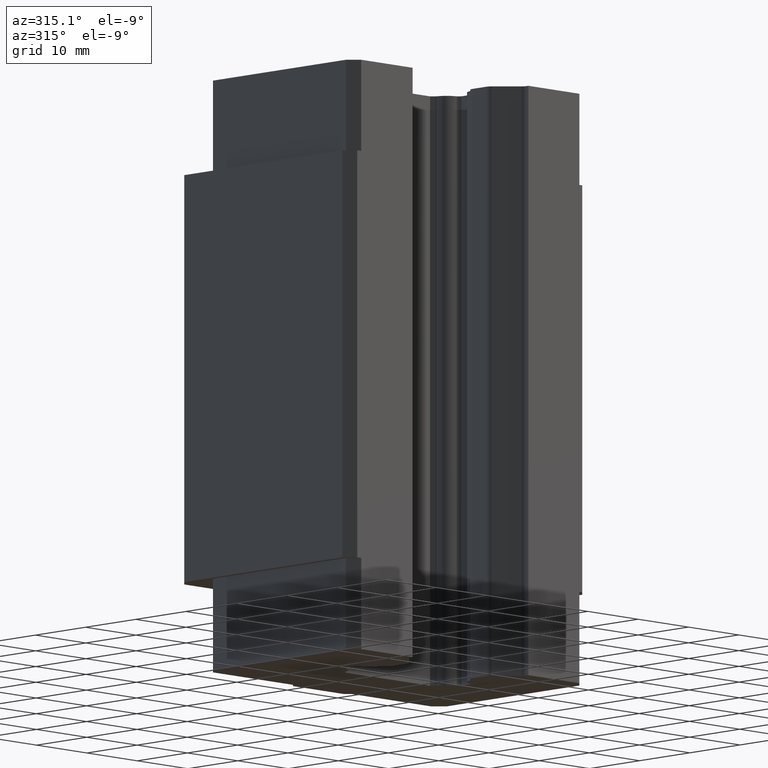
[diagram: clean part render]
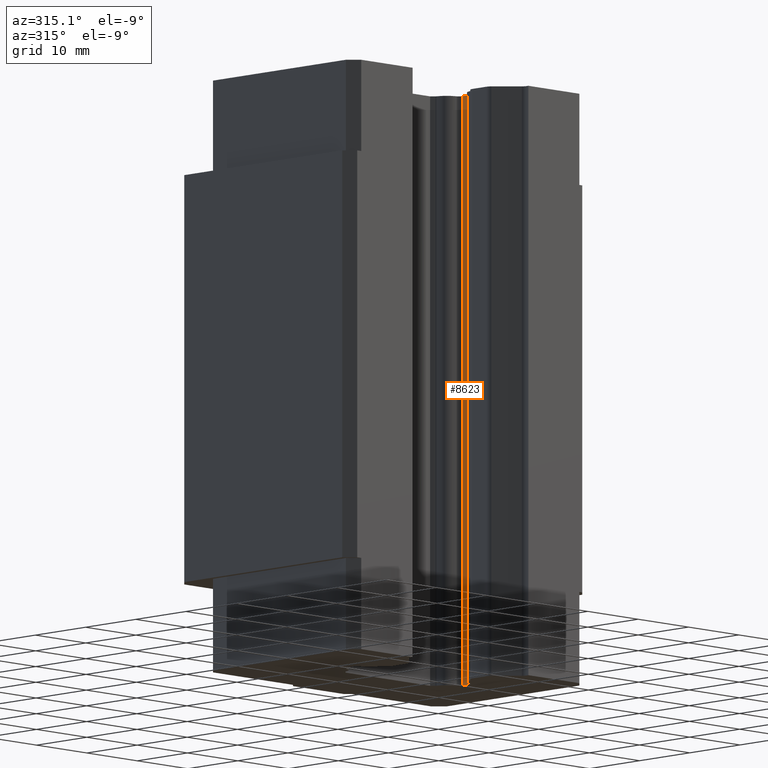
[diagram: same view with one face highlighted and labeled with its STEP entity id]
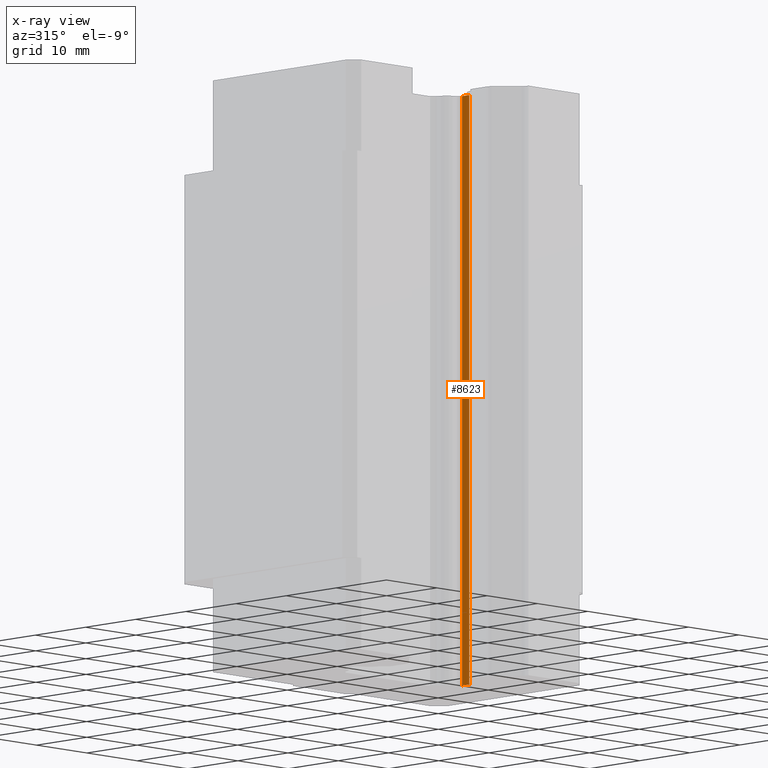
[diagram: x-ray of the same camera — body ghosted, the highlighted face saturated]
A machine part, auxiliary view. The second image highlights one B-rep face of the part: STEP entity #8623.
The next image is the same camera in x-ray: the body ghosted, the highlighted face saturated — about 0% of this face is hidden behind the body in this view.
In plain terms, the highlighted planar face has unit normal (-1, 0, 0).
Its self-contained STEP definition (entity closure, byte-faithful):
#1797 = DIRECTION ( 'NONE',  ( 0.0000000000000000000, 0.0000000000000000000, 1.000000000000000000 ) ) ;
#1798 = DIRECTION ( 'NONE',  ( -1.000000000000000000, 0.0000000000000000000, 0.0000000000000000000 ) ) ;
#1799 = CARTESIAN_POINT ( 'NONE',  ( 11.50000000000000000, -3.298408781186000100, -29.00000000000000000 ) ) ;
#1800 = AXIS2_PLACEMENT_3D ( 'NONE', #1799, #1798, #1797 ) ;
#1801 = PLANE ( 'NONE',  #1800 ) ;
#1802 = FACE_OUTER_BOUND ( 'NONE', #8624, .T. ) ;
#6559 = CARTESIAN_POINT ( 'NONE',  ( 11.50000000000000000, -4.712756218814000400, -42.00000000000000000 ) ) ;
#6599 = CARTESIAN_POINT ( 'NONE',  ( 11.50000000000000000, -3.298408781186000100, -42.00000000000000000 ) ) ;
#7393 = ORIENTED_EDGE ( 'NONE', *, *, #7394, .T. ) ;
#7394 = EDGE_CURVE ( 'NONE', #12867, #12858, #12182, .T. ) ;
#7424 = VERTEX_POINT ( 'NONE', #12253 ) ;
#7439 = ORIENTED_EDGE ( 'NONE', *, *, #7440, .T. ) ;
#7440 = EDGE_CURVE ( 'NONE', #12858, #7424, #12294, .T. ) ;
#7441 = ORIENTED_EDGE ( 'NONE', *, *, #7442, .T. ) ;
#7442 = EDGE_CURVE ( 'NONE', #7424, #7443, #12290, .T. ) ;
#7443 = VERTEX_POINT ( 'NONE', #12286 ) ;
#7444 = ORIENTED_EDGE ( 'NONE', *, *, #7445, .T. ) ;
#7445 = EDGE_CURVE ( 'NONE', #7443, #12867, #12285, .T. ) ;
#8623 = ADVANCED_FACE ( 'NONE', ( #1802 ), #1801, .T. ) ;
#8624 = EDGE_LOOP ( 'NONE', ( #7393, #7439, #7441, #7444 ) ) ;
#12179 = DIRECTION ( 'NONE',  ( 0.0000000000000000000, -1.000000000000000000, 0.0000000000000000000 ) ) ;
#12180 = VECTOR ( 'NONE', #12179, 1000.000000000000000 ) ;
#12181 = CARTESIAN_POINT ( 'NONE',  ( 11.50000000000000000, -3.298408781186000100, -42.00000000000000000 ) ) ;
#12182 = LINE ( 'NONE', #12181, #12180 ) ;
#12253 = CARTESIAN_POINT ( 'NONE',  ( 11.50000000000000000, -4.712756218814000400, 42.00000000000000700 ) ) ;
#12282 = DIRECTION ( 'NONE',  ( 0.0000000000000000000, 0.0000000000000000000, -1.000000000000000000 ) ) ;
#12283 = VECTOR ( 'NONE', #12282, 1000.000000000000000 ) ;
#12284 = CARTESIAN_POINT ( 'NONE',  ( 11.50000000000000000, -3.298408781186000100, -29.00000000000000000 ) ) ;
#12285 = LINE ( 'NONE', #12284, #12283 ) ;
#12286 = CARTESIAN_POINT ( 'NONE',  ( 11.50000000000000000, -3.298408781186000100, 42.00000000000000700 ) ) ;
#12287 = DIRECTION ( 'NONE',  ( 0.0000000000000000000, 1.000000000000000000, 0.0000000000000000000 ) ) ;
#12288 = VECTOR ( 'NONE', #12287, 1000.000000000000000 ) ;
#12289 = CARTESIAN_POINT ( 'NONE',  ( 11.50000000000000000, -3.298408781186000100, 42.00000000000000700 ) ) ;
#12290 = LINE ( 'NONE', #12289, #12288 ) ;
#12291 = DIRECTION ( 'NONE',  ( 0.0000000000000000000, 0.0000000000000000000, 1.000000000000000000 ) ) ;
#12292 = VECTOR ( 'NONE', #12291, 1000.000000000000000 ) ;
#12293 = CARTESIAN_POINT ( 'NONE',  ( 11.50000000000000000, -4.712756218814000400, -29.00000000000000000 ) ) ;
#12294 = LINE ( 'NONE', #12293, #12292 ) ;
#12858 = VERTEX_POINT ( 'NONE', #6559 ) ;
#12867 = VERTEX_POINT ( 'NONE', #6599 ) ;